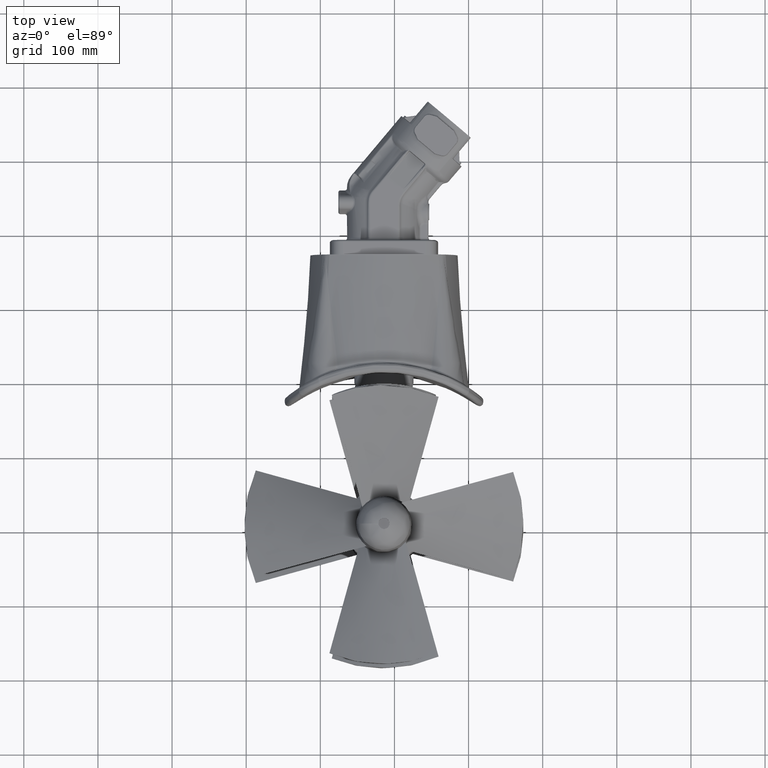
[diagram: clean part render]
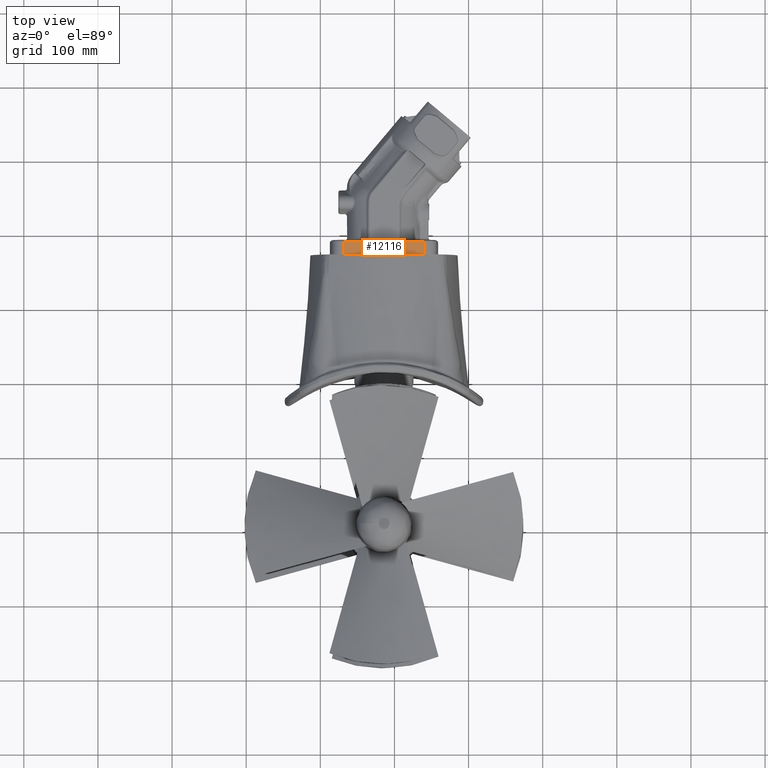
[diagram: same view with one face highlighted and labeled with its STEP entity id]
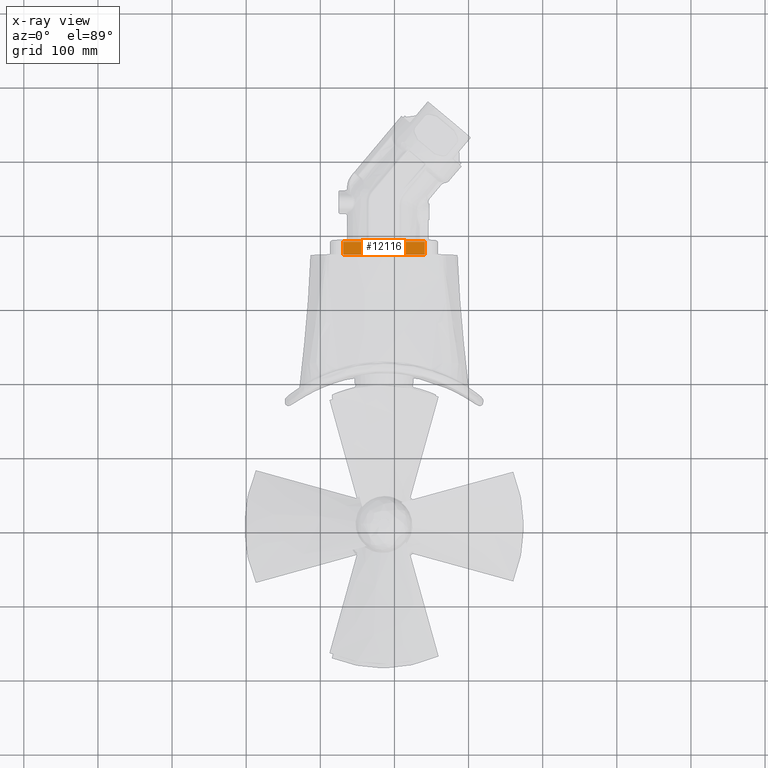
[diagram: x-ray of the same camera — body ghosted, the highlighted face saturated]
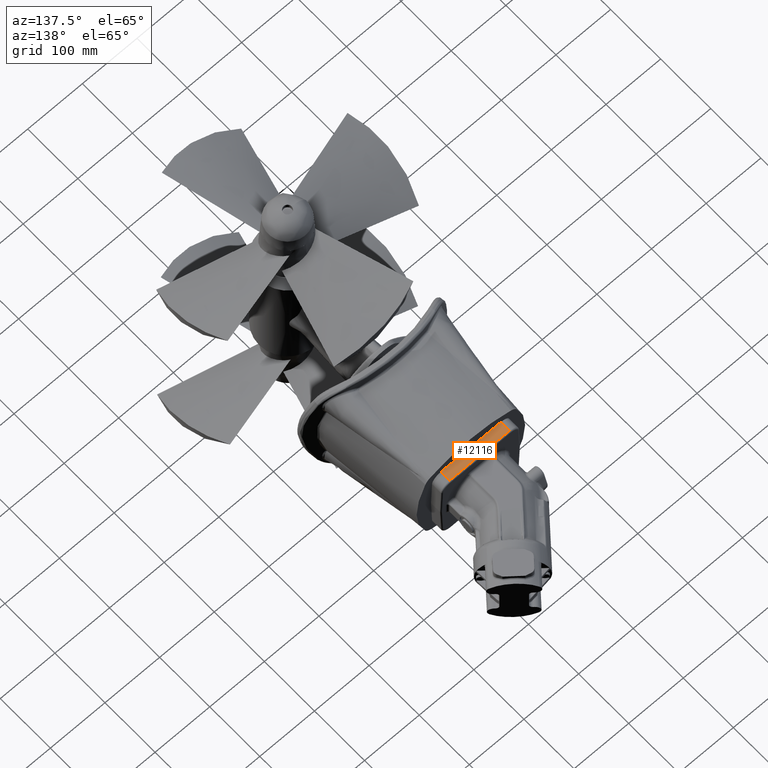
[diagram: same view with one face highlighted and labeled with its STEP entity id]
A machine part, top view. The second image highlights one B-rep face of the part: STEP entity #12116.
The next image is the same camera in x-ray: the body ghosted, the highlighted face saturated — about 0% of this face is hidden behind the body in this view.
A second angle (auxiliary view) of the same face is appended — the face is thin or edge-on in the first view.
In plain terms, the highlighted planar face has unit normal (0, 0, 1).
Its self-contained STEP definition (entity closure, byte-faithful):
#1323=LINE('',#15986,#1650);
#1554=LINE('',#39153,#1881);
#1568=LINE('',#39207,#1895);
#1569=LINE('',#39209,#1896);
#1650=VECTOR('',#13547,109.99952686038);
#1881=VECTOR('',#15068,109.99952686035);
#1895=VECTOR('',#15146,17.3);
#1896=VECTOR('',#15149,17.3);
#2659=FACE_OUTER_BOUND('',#3456,.T.);
#3456=EDGE_LOOP('',(#9474,#9475,#9476,#9477));
#4486=VERTEX_POINT('',#15983);
#4487=VERTEX_POINT('',#15985);
#5177=VERTEX_POINT('',#39148);
#5178=VERTEX_POINT('',#39152);
#5530=EDGE_CURVE('',#4486,#4487,#1323,.T.);
#6663=EDGE_CURVE('',#5177,#5178,#1554,.T.);
#6691=EDGE_CURVE('',#4487,#5177,#1568,.T.);
#6692=EDGE_CURVE('',#4486,#5178,#1569,.T.);
#9474=ORIENTED_EDGE('',*,*,#5530,.F.);
#9475=ORIENTED_EDGE('',*,*,#6692,.T.);
#9476=ORIENTED_EDGE('',*,*,#6663,.F.);
#9477=ORIENTED_EDGE('',*,*,#6691,.F.);
#10898=PLANE('',#13137);
#12116=ADVANCED_FACE('',(#2659),#10898,.T.);
#13137=AXIS2_PLACEMENT_3D('',#39208,#15147,#15148);
#13547=DIRECTION('',(-1.,5.58326441711462E-16,2.72956221307933E-18));
#15068=DIRECTION('',(1.,-5.58326441711462E-16,-2.72956221307933E-18));
#15146=DIRECTION('',(1.47914436617371E-12,1.,-9.79009400441188E-17));
#15147=DIRECTION('center_axis',(2.72956221307941E-18,9.79009400441147E-17,
1.));
#15148=DIRECTION('ref_axis',(-1.,0.,0.));
#15149=DIRECTION('',(-1.58276089110429E-12,1.,-9.79009400441104E-17));
#15983=CARTESIAN_POINT('',(-459.080470481799,869.57759558599,72.9999999999997));
#15985=CARTESIAN_POINT('',(-569.079997342179,869.57759558599,72.9999999999997));
#15986=CARTESIAN_POINT('',(-459.080470481799,869.57759558599,72.9999999999997));
#39148=CARTESIAN_POINT('',(-569.079997342179,886.87759558599,72.9999999999997));
#39152=CARTESIAN_POINT('',(-459.080470481829,886.87759558599,72.9999999999997));
#39153=CARTESIAN_POINT('',(-569.079997342149,886.87759558599,72.9999999999997));
#39207=CARTESIAN_POINT('',(-569.079997342179,869.57759558599,72.9999999999997));
#39208=CARTESIAN_POINT('Origin',(-443.629450084889,866.37759558599,72.9999999999997));
#39209=CARTESIAN_POINT('',(-459.080470481799,869.57759558599,72.9999999999997));